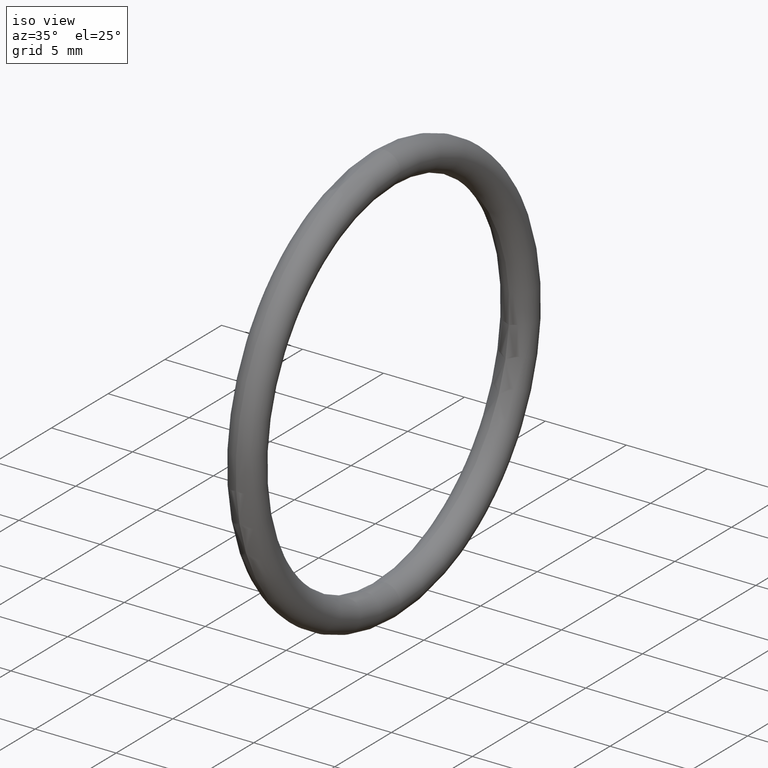
[diagram: clean part render]
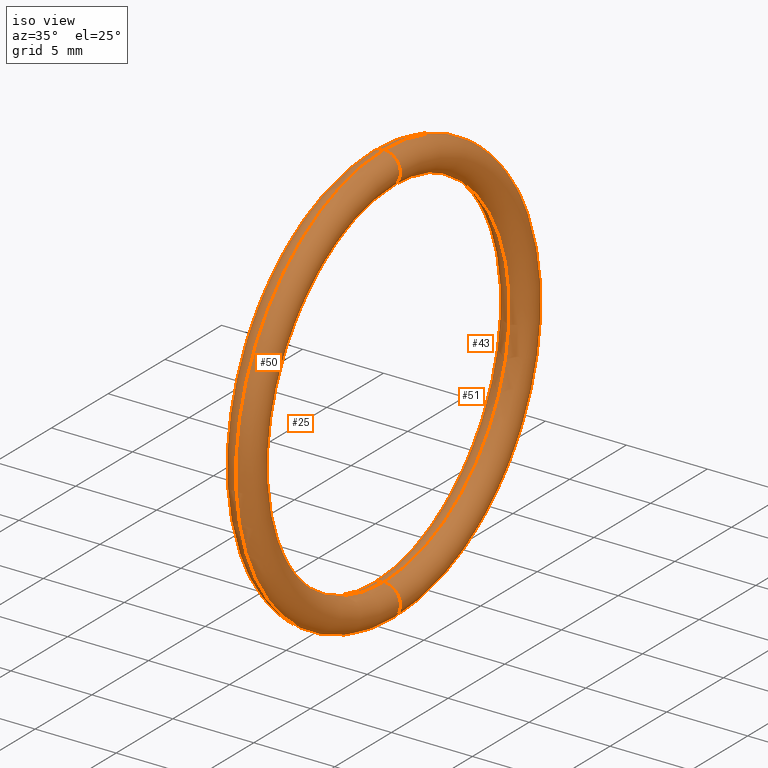
[diagram: same view with one multi-face feature highlighted, each face labeled with its STEP entity id]
A machine part, iso view. The highlighted faces form ONE feature: a constant-radius fillet chain: 4 tangent blend faces with common blend radius 1.016 mm. The faces share edges in the B-rep.
Their STEP definitions:
[1] entity #51 (Torus):
#29 = ORIENTED_EDGE ( 'NONE', *, *, #33, .F. ) ;
#33 = EDGE_CURVE ( 'NONE', #56, #54, #128, .T. ) ;
#35 = ORIENTED_EDGE ( 'NONE', *, *, #39, .T. ) ;
#39 = EDGE_CURVE ( 'NONE', #53, #54, #89, .T. ) ;
#46 = ORIENTED_EDGE ( 'NONE', *, *, #63, .F. ) ;
#47 = ORIENTED_EDGE ( 'NONE', *, *, #48, .T. ) ;
#48 = EDGE_CURVE ( 'NONE', #61, #53, #119, .T. ) ;
#51 = ADVANCED_FACE ( 'NONE', ( #123 ), #94, .T. ) ;
#53 = VERTEX_POINT ( 'NONE', #105 ) ;
#54 = VERTEX_POINT ( 'NONE', #104 ) ;
#56 = VERTEX_POINT ( 'NONE', #103 ) ;
#59 = EDGE_LOOP ( 'NONE', ( #46, #47, #35, #29 ) ) ;
#61 = VERTEX_POINT ( 'NONE', #110 ) ;
#63 = EDGE_CURVE ( 'NONE', #61, #56, #67, .T. ) ;
#67 = CIRCLE ( 'NONE', #72, 0.03999999999999998000 ) ;
#71 = CARTESIAN_POINT ( 'NONE',  ( 0.1000000000000000600, 0.0000000000000000000, 0.4749999999999999800 ) ) ;
#72 = AXIS2_PLACEMENT_3D ( 'NONE', #71, #78, #73 ) ;
#73 = DIRECTION ( 'NONE',  ( 0.0000000000000000000, 0.0000000000000000000, -1.000000000000000000 ) ) ;
#78 = DIRECTION ( 'NONE',  ( 0.0000000000000000000, -1.000000000000000000, 0.0000000000000000000 ) ) ;
#83 = DIRECTION ( 'NONE',  ( 0.0000000000000000000, 0.0000000000000000000, 1.000000000000000000 ) ) ;
#84 = DIRECTION ( 'NONE',  ( -1.000000000000000000, -0.0000000000000000000, -0.0000000000000000000 ) ) ;
#86 = DIRECTION ( 'NONE',  ( 0.0000000000000000000, -1.224646799147353000E-016, 1.000000000000000000 ) ) ;
#87 = DIRECTION ( 'NONE',  ( -0.0000000000000000000, 1.000000000000000000, 1.224646799147353200E-016 ) ) ;
#88 = AXIS2_PLACEMENT_3D ( 'NONE', #129, #87, #86 ) ;
#89 = CIRCLE ( 'NONE', #88, 0.03999999999999998000 ) ;
#94 = TOROIDAL_SURFACE ( 'NONE', #109, 0.4749999999999999800, 0.04000000000000000100 ) ;
#103 = CARTESIAN_POINT ( 'NONE',  ( 0.1000000000000000600, 0.0000000000000000000, 0.4350000000000000000 ) ) ;
#104 = CARTESIAN_POINT ( 'NONE',  ( 0.1000000000000000600, 5.327213576290986400E-017, -0.4350000000000000000 ) ) ;
#105 = CARTESIAN_POINT ( 'NONE',  ( 0.1000000000000000600, 6.306931015608868600E-017, -0.5150000000000000100 ) ) ;
#106 = DIRECTION ( 'NONE',  ( 0.0000000000000000000, 0.0000000000000000000, 1.000000000000000000 ) ) ;
#107 = DIRECTION ( 'NONE',  ( -1.000000000000000000, -0.0000000000000000000, -0.0000000000000000000 ) ) ;
#108 = CARTESIAN_POINT ( 'NONE',  ( 0.1000000000000000600, 0.0000000000000000000, 0.0000000000000000000 ) ) ;
#109 = AXIS2_PLACEMENT_3D ( 'NONE', #108, #107, #106 ) ;
#110 = CARTESIAN_POINT ( 'NONE',  ( 0.1000000000000000600, 0.0000000000000000000, 0.5150000000000000100 ) ) ;
#116 = DIRECTION ( 'NONE',  ( -1.000000000000000000, -0.0000000000000000000, -0.0000000000000000000 ) ) ;
#117 = CARTESIAN_POINT ( 'NONE',  ( 0.1000000000000000600, 0.0000000000000000000, 0.0000000000000000000 ) ) ;
#118 = AXIS2_PLACEMENT_3D ( 'NONE', #117, #116, #125 ) ;
#119 = CIRCLE ( 'NONE', #118, 0.5150000000000000100 ) ;
#123 = FACE_OUTER_BOUND ( 'NONE', #59, .T. ) ;
#125 = DIRECTION ( 'NONE',  ( 0.0000000000000000000, 0.0000000000000000000, 1.000000000000000000 ) ) ;
#126 = CARTESIAN_POINT ( 'NONE',  ( 0.1000000000000000600, 0.0000000000000000000, 0.0000000000000000000 ) ) ;
#127 = AXIS2_PLACEMENT_3D ( 'NONE', #126, #84, #83 ) ;
#128 = CIRCLE ( 'NONE', #127, 0.4350000000000000000 ) ;
#129 = CARTESIAN_POINT ( 'NONE',  ( 0.1000000000000000600, 5.817072295949927200E-017, -0.4749999999999999800 ) ) ;
[2] entity #43 (Torus):
#27 = EDGE_CURVE ( 'NONE', #54, #53, #92, .T. ) ;
#30 = ORIENTED_EDGE ( 'NONE', *, *, #45, .F. ) ;
#31 = ORIENTED_EDGE ( 'NONE', *, *, #48, .F. ) ;
#32 = ORIENTED_EDGE ( 'NONE', *, *, #27, .T. ) ;
#33 = EDGE_CURVE ( 'NONE', #56, #54, #128, .T. ) ;
#36 = ORIENTED_EDGE ( 'NONE', *, *, #33, .T. ) ;
#43 = ADVANCED_FACE ( 'NONE', ( #82 ), #85, .T. ) ;
#44 = EDGE_LOOP ( 'NONE', ( #31, #30, #36, #32 ) ) ;
#45 = EDGE_CURVE ( 'NONE', #56, #61, #134, .T. ) ;
#48 = EDGE_CURVE ( 'NONE', #61, #53, #119, .T. ) ;
#53 = VERTEX_POINT ( 'NONE', #105 ) ;
#54 = VERTEX_POINT ( 'NONE', #104 ) ;
#56 = VERTEX_POINT ( 'NONE', #103 ) ;
#61 = VERTEX_POINT ( 'NONE', #110 ) ;
#82 = FACE_OUTER_BOUND ( 'NONE', #44, .T. ) ;
#83 = DIRECTION ( 'NONE',  ( 0.0000000000000000000, 0.0000000000000000000, 1.000000000000000000 ) ) ;
#84 = DIRECTION ( 'NONE',  ( -1.000000000000000000, -0.0000000000000000000, -0.0000000000000000000 ) ) ;
#85 = TOROIDAL_SURFACE ( 'NONE', #138, 0.4749999999999999800, 0.04000000000000000100 ) ;
#90 = CARTESIAN_POINT ( 'NONE',  ( 0.1000000000000000600, 5.817072295949927200E-017, -0.4749999999999999800 ) ) ;
#91 = AXIS2_PLACEMENT_3D ( 'NONE', #90, #93, #130 ) ;
#92 = CIRCLE ( 'NONE', #91, 0.03999999999999998000 ) ;
#93 = DIRECTION ( 'NONE',  ( -0.0000000000000000000, 1.000000000000000000, 1.224646799147353200E-016 ) ) ;
#103 = CARTESIAN_POINT ( 'NONE',  ( 0.1000000000000000600, 0.0000000000000000000, 0.4350000000000000000 ) ) ;
#104 = CARTESIAN_POINT ( 'NONE',  ( 0.1000000000000000600, 5.327213576290986400E-017, -0.4350000000000000000 ) ) ;
#105 = CARTESIAN_POINT ( 'NONE',  ( 0.1000000000000000600, 6.306931015608868600E-017, -0.5150000000000000100 ) ) ;
#110 = CARTESIAN_POINT ( 'NONE',  ( 0.1000000000000000600, 0.0000000000000000000, 0.5150000000000000100 ) ) ;
#116 = DIRECTION ( 'NONE',  ( -1.000000000000000000, -0.0000000000000000000, -0.0000000000000000000 ) ) ;
#117 = CARTESIAN_POINT ( 'NONE',  ( 0.1000000000000000600, 0.0000000000000000000, 0.0000000000000000000 ) ) ;
#118 = AXIS2_PLACEMENT_3D ( 'NONE', #117, #116, #125 ) ;
#119 = CIRCLE ( 'NONE', #118, 0.5150000000000000100 ) ;
#121 = DIRECTION ( 'NONE',  ( 0.0000000000000000000, 0.0000000000000000000, -1.000000000000000000 ) ) ;
#125 = DIRECTION ( 'NONE',  ( 0.0000000000000000000, 0.0000000000000000000, 1.000000000000000000 ) ) ;
#126 = CARTESIAN_POINT ( 'NONE',  ( 0.1000000000000000600, 0.0000000000000000000, 0.0000000000000000000 ) ) ;
#127 = AXIS2_PLACEMENT_3D ( 'NONE', #126, #84, #83 ) ;
#128 = CIRCLE ( 'NONE', #127, 0.4350000000000000000 ) ;
#130 = DIRECTION ( 'NONE',  ( 0.0000000000000000000, -1.224646799147353000E-016, 1.000000000000000000 ) ) ;
#131 = DIRECTION ( 'NONE',  ( 0.0000000000000000000, -1.000000000000000000, 0.0000000000000000000 ) ) ;
#132 = CARTESIAN_POINT ( 'NONE',  ( 0.1000000000000000600, 0.0000000000000000000, 0.4749999999999999800 ) ) ;
#133 = AXIS2_PLACEMENT_3D ( 'NONE', #132, #131, #121 ) ;
#134 = CIRCLE ( 'NONE', #133, 0.03999999999999998000 ) ;
#135 = DIRECTION ( 'NONE',  ( 0.0000000000000000000, 0.0000000000000000000, 1.000000000000000000 ) ) ;
#136 = DIRECTION ( 'NONE',  ( -1.000000000000000000, -0.0000000000000000000, -0.0000000000000000000 ) ) ;
#137 = CARTESIAN_POINT ( 'NONE',  ( 0.1000000000000000600, 0.0000000000000000000, 0.0000000000000000000 ) ) ;
#138 = AXIS2_PLACEMENT_3D ( 'NONE', #137, #136, #135 ) ;
[3] entity #25 (Torus):
#25 = ADVANCED_FACE ( 'NONE', ( #52 ), #65, .T. ) ;
#26 = ORIENTED_EDGE ( 'NONE', *, *, #60, .F. ) ;
#27 = EDGE_CURVE ( 'NONE', #54, #53, #92, .T. ) ;
#28 = EDGE_LOOP ( 'NONE', ( #26, #40, #41, #34 ) ) ;
#34 = ORIENTED_EDGE ( 'NONE', *, *, #45, .T. ) ;
#40 = ORIENTED_EDGE ( 'NONE', *, *, #27, .F. ) ;
#41 = ORIENTED_EDGE ( 'NONE', *, *, #58, .T. ) ;
#45 = EDGE_CURVE ( 'NONE', #56, #61, #134, .T. ) ;
#52 = FACE_OUTER_BOUND ( 'NONE', #28, .T. ) ;
#53 = VERTEX_POINT ( 'NONE', #105 ) ;
#54 = VERTEX_POINT ( 'NONE', #104 ) ;
#56 = VERTEX_POINT ( 'NONE', #103 ) ;
#58 = EDGE_CURVE ( 'NONE', #54, #56, #102, .T. ) ;
#60 = EDGE_CURVE ( 'NONE', #53, #61, #115, .T. ) ;
#61 = VERTEX_POINT ( 'NONE', #110 ) ;
#64 = AXIS2_PLACEMENT_3D ( 'NONE', #70, #69, #68 ) ;
#65 = TOROIDAL_SURFACE ( 'NONE', #64, 0.4749999999999999800, 0.04000000000000000100 ) ;
#68 = DIRECTION ( 'NONE',  ( 0.0000000000000000000, 0.0000000000000000000, 1.000000000000000000 ) ) ;
#69 = DIRECTION ( 'NONE',  ( -1.000000000000000000, -0.0000000000000000000, -0.0000000000000000000 ) ) ;
#70 = CARTESIAN_POINT ( 'NONE',  ( 0.1000000000000000600, 0.0000000000000000000, 0.0000000000000000000 ) ) ;
#90 = CARTESIAN_POINT ( 'NONE',  ( 0.1000000000000000600, 5.817072295949927200E-017, -0.4749999999999999800 ) ) ;
#91 = AXIS2_PLACEMENT_3D ( 'NONE', #90, #93, #130 ) ;
#92 = CIRCLE ( 'NONE', #91, 0.03999999999999998000 ) ;
#93 = DIRECTION ( 'NONE',  ( -0.0000000000000000000, 1.000000000000000000, 1.224646799147353200E-016 ) ) ;
#98 = DIRECTION ( 'NONE',  ( 0.0000000000000000000, 0.0000000000000000000, 1.000000000000000000 ) ) ;
#99 = DIRECTION ( 'NONE',  ( -1.000000000000000000, -0.0000000000000000000, -0.0000000000000000000 ) ) ;
#100 = CARTESIAN_POINT ( 'NONE',  ( 0.1000000000000000600, 0.0000000000000000000, 0.0000000000000000000 ) ) ;
#101 = AXIS2_PLACEMENT_3D ( 'NONE', #100, #99, #98 ) ;
#102 = CIRCLE ( 'NONE', #101, 0.4350000000000000000 ) ;
#103 = CARTESIAN_POINT ( 'NONE',  ( 0.1000000000000000600, 0.0000000000000000000, 0.4350000000000000000 ) ) ;
#104 = CARTESIAN_POINT ( 'NONE',  ( 0.1000000000000000600, 5.327213576290986400E-017, -0.4350000000000000000 ) ) ;
#105 = CARTESIAN_POINT ( 'NONE',  ( 0.1000000000000000600, 6.306931015608868600E-017, -0.5150000000000000100 ) ) ;
#110 = CARTESIAN_POINT ( 'NONE',  ( 0.1000000000000000600, 0.0000000000000000000, 0.5150000000000000100 ) ) ;
#111 = DIRECTION ( 'NONE',  ( 0.0000000000000000000, 0.0000000000000000000, 1.000000000000000000 ) ) ;
#112 = DIRECTION ( 'NONE',  ( -1.000000000000000000, -0.0000000000000000000, -0.0000000000000000000 ) ) ;
#113 = CARTESIAN_POINT ( 'NONE',  ( 0.1000000000000000600, 0.0000000000000000000, 0.0000000000000000000 ) ) ;
#114 = AXIS2_PLACEMENT_3D ( 'NONE', #113, #112, #111 ) ;
#115 = CIRCLE ( 'NONE', #114, 0.5150000000000000100 ) ;
#121 = DIRECTION ( 'NONE',  ( 0.0000000000000000000, 0.0000000000000000000, -1.000000000000000000 ) ) ;
#130 = DIRECTION ( 'NONE',  ( 0.0000000000000000000, -1.224646799147353000E-016, 1.000000000000000000 ) ) ;
#131 = DIRECTION ( 'NONE',  ( 0.0000000000000000000, -1.000000000000000000, 0.0000000000000000000 ) ) ;
#132 = CARTESIAN_POINT ( 'NONE',  ( 0.1000000000000000600, 0.0000000000000000000, 0.4749999999999999800 ) ) ;
#133 = AXIS2_PLACEMENT_3D ( 'NONE', #132, #131, #121 ) ;
#134 = CIRCLE ( 'NONE', #133, 0.03999999999999998000 ) ;
[4] entity #50 (Torus):
#37 = EDGE_LOOP ( 'NONE', ( #38, #55, #62, #57 ) ) ;
#38 = ORIENTED_EDGE ( 'NONE', *, *, #39, .F. ) ;
#39 = EDGE_CURVE ( 'NONE', #53, #54, #89, .T. ) ;
#50 = ADVANCED_FACE ( 'NONE', ( #120 ), #122, .T. ) ;
#53 = VERTEX_POINT ( 'NONE', #105 ) ;
#54 = VERTEX_POINT ( 'NONE', #104 ) ;
#55 = ORIENTED_EDGE ( 'NONE', *, *, #60, .T. ) ;
#56 = VERTEX_POINT ( 'NONE', #103 ) ;
#57 = ORIENTED_EDGE ( 'NONE', *, *, #58, .F. ) ;
#58 = EDGE_CURVE ( 'NONE', #54, #56, #102, .T. ) ;
#60 = EDGE_CURVE ( 'NONE', #53, #61, #115, .T. ) ;
#61 = VERTEX_POINT ( 'NONE', #110 ) ;
#62 = ORIENTED_EDGE ( 'NONE', *, *, #63, .T. ) ;
#63 = EDGE_CURVE ( 'NONE', #61, #56, #67, .T. ) ;
#67 = CIRCLE ( 'NONE', #72, 0.03999999999999998000 ) ;
#71 = CARTESIAN_POINT ( 'NONE',  ( 0.1000000000000000600, 0.0000000000000000000, 0.4749999999999999800 ) ) ;
#72 = AXIS2_PLACEMENT_3D ( 'NONE', #71, #78, #73 ) ;
#73 = DIRECTION ( 'NONE',  ( 0.0000000000000000000, 0.0000000000000000000, -1.000000000000000000 ) ) ;
#78 = DIRECTION ( 'NONE',  ( 0.0000000000000000000, -1.000000000000000000, 0.0000000000000000000 ) ) ;
#86 = DIRECTION ( 'NONE',  ( 0.0000000000000000000, -1.224646799147353000E-016, 1.000000000000000000 ) ) ;
#87 = DIRECTION ( 'NONE',  ( -0.0000000000000000000, 1.000000000000000000, 1.224646799147353200E-016 ) ) ;
#88 = AXIS2_PLACEMENT_3D ( 'NONE', #129, #87, #86 ) ;
#89 = CIRCLE ( 'NONE', #88, 0.03999999999999998000 ) ;
#95 = DIRECTION ( 'NONE',  ( 0.0000000000000000000, 0.0000000000000000000, 1.000000000000000000 ) ) ;
#96 = DIRECTION ( 'NONE',  ( -1.000000000000000000, -0.0000000000000000000, -0.0000000000000000000 ) ) ;
#97 = AXIS2_PLACEMENT_3D ( 'NONE', #124, #96, #95 ) ;
#98 = DIRECTION ( 'NONE',  ( 0.0000000000000000000, 0.0000000000000000000, 1.000000000000000000 ) ) ;
#99 = DIRECTION ( 'NONE',  ( -1.000000000000000000, -0.0000000000000000000, -0.0000000000000000000 ) ) ;
#100 = CARTESIAN_POINT ( 'NONE',  ( 0.1000000000000000600, 0.0000000000000000000, 0.0000000000000000000 ) ) ;
#101 = AXIS2_PLACEMENT_3D ( 'NONE', #100, #99, #98 ) ;
#102 = CIRCLE ( 'NONE', #101, 0.4350000000000000000 ) ;
#103 = CARTESIAN_POINT ( 'NONE',  ( 0.1000000000000000600, 0.0000000000000000000, 0.4350000000000000000 ) ) ;
#104 = CARTESIAN_POINT ( 'NONE',  ( 0.1000000000000000600, 5.327213576290986400E-017, -0.4350000000000000000 ) ) ;
#105 = CARTESIAN_POINT ( 'NONE',  ( 0.1000000000000000600, 6.306931015608868600E-017, -0.5150000000000000100 ) ) ;
#110 = CARTESIAN_POINT ( 'NONE',  ( 0.1000000000000000600, 0.0000000000000000000, 0.5150000000000000100 ) ) ;
#111 = DIRECTION ( 'NONE',  ( 0.0000000000000000000, 0.0000000000000000000, 1.000000000000000000 ) ) ;
#112 = DIRECTION ( 'NONE',  ( -1.000000000000000000, -0.0000000000000000000, -0.0000000000000000000 ) ) ;
#113 = CARTESIAN_POINT ( 'NONE',  ( 0.1000000000000000600, 0.0000000000000000000, 0.0000000000000000000 ) ) ;
#114 = AXIS2_PLACEMENT_3D ( 'NONE', #113, #112, #111 ) ;
#115 = CIRCLE ( 'NONE', #114, 0.5150000000000000100 ) ;
#120 = FACE_OUTER_BOUND ( 'NONE', #37, .T. ) ;
#122 = TOROIDAL_SURFACE ( 'NONE', #97, 0.4749999999999999800, 0.04000000000000000100 ) ;
#124 = CARTESIAN_POINT ( 'NONE',  ( 0.1000000000000000600, 0.0000000000000000000, 0.0000000000000000000 ) ) ;
#129 = CARTESIAN_POINT ( 'NONE',  ( 0.1000000000000000600, 5.817072295949927200E-017, -0.4749999999999999800 ) ) ;